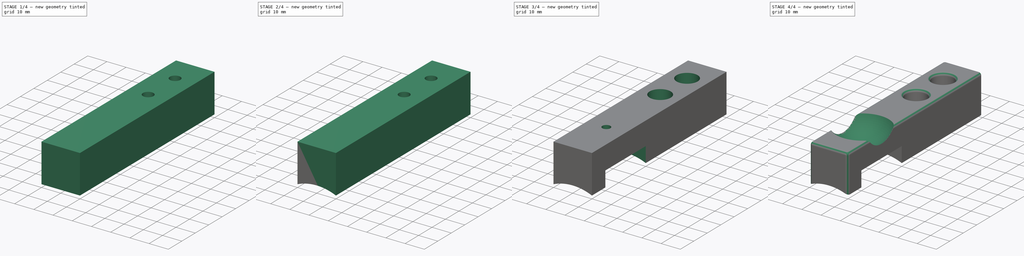
[diagram: build sequence overview — one tinted view per stage of 4, left to right]
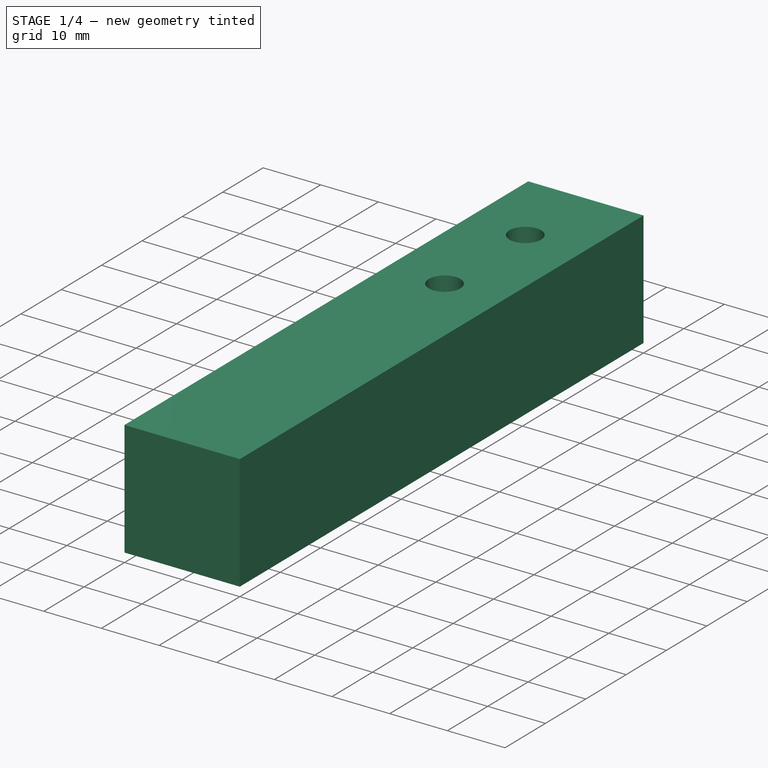
[diagram: stage 1 of 4 — iso view after this stage's code; geometry added in this stage tinted green]
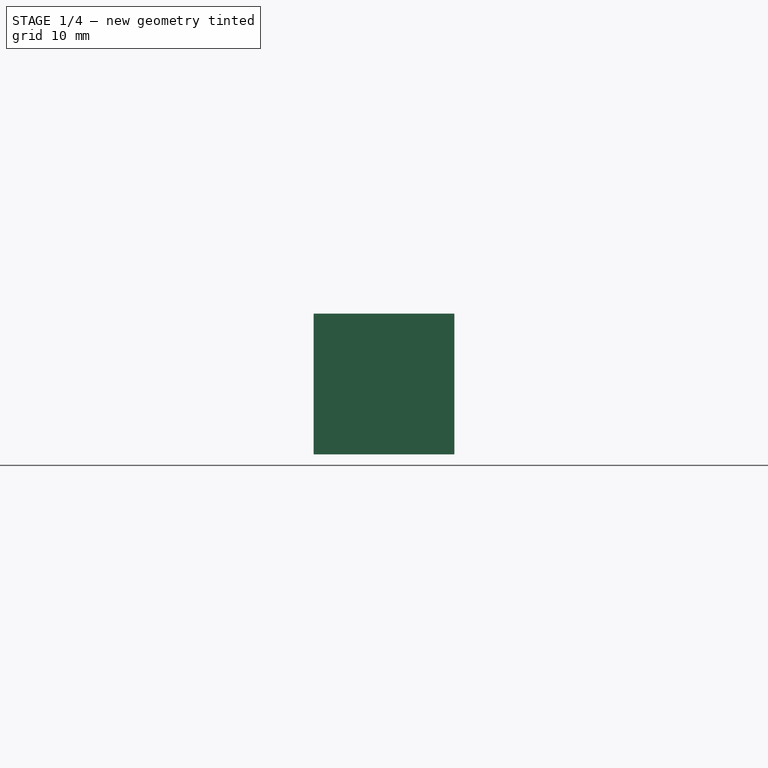
[diagram: stage 1 of 4 — front view after this stage's code; geometry added in this stage tinted green]
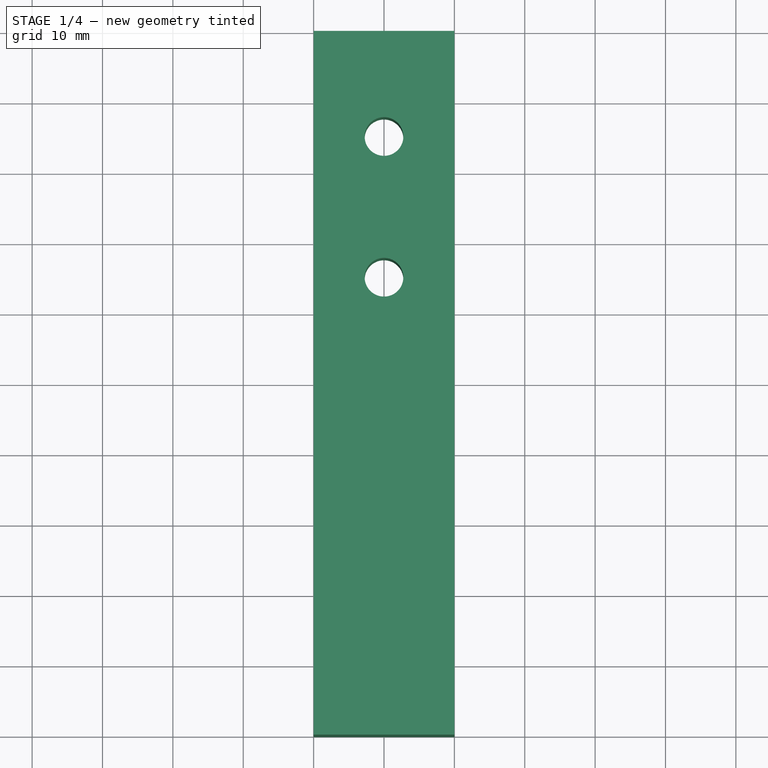
[diagram: stage 1 of 4 — top view after this stage's code; geometry added in this stage tinted green]
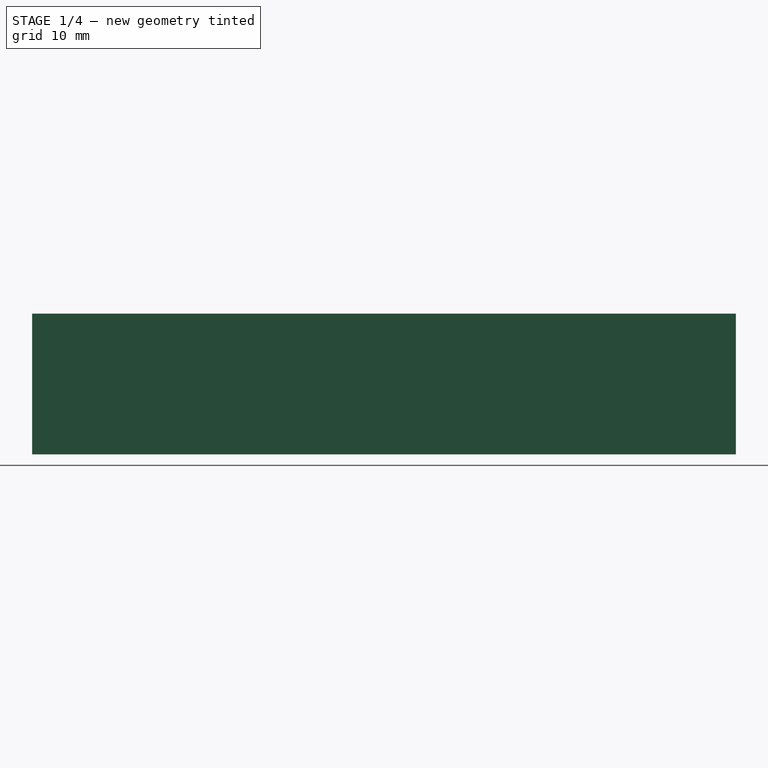
[diagram: stage 1 of 4 — right view after this stage's code; geometry added in this stage tinted green]
FCSTD DOCUMENT  (FreeCAD 0.17R13522 (Git))
Label: drawing
License: All rights reserved
LicenseURL: http://en.wikipedia.org/wiki/All_rights_reserved
objects: Sketcher::SketchObject×6, PartDesign::Pocket×6, Part::Box×1, App::DocumentObjectGroup×1, PartDesign::FeatureBase×1, PartDesign::SubtractiveSphere×1, PartDesign::Fillet×1, PartDesign::Body×1
note: 24 computed .brp shape members not serialized (recipe doc carries the construction recipe); baked Part::Feature solids carry a one-line shape summary decoded from their .brp

FEATURE [Part::Box] Box  label="Cube"
  AttacherType = Attacher::AttachEngine3D
  Height = 20
  Length = 20
  Placement = pos=(-10,0,-8) rot=(0,0,1;0rad)
  Width = 100
FEATURE [Sketcher::SketchObject] Sketch007
  ExternalGeometry = -> [Box]
  MapMode = 5
  Placement = pos=(-10,0,-8) rot=(1,0,0;3.14159rad)
  Support = -> [Box]
  expr: Constraints[7] = 5.5 / 2
  sketch-geometry (3):
    g0: Circle CenterX=10 CenterY=-65 CenterZ=0 NormalX=0 NormalY=0 NormalZ=1 AngleXU=0 Radius=2.75
    g1: Circle CenterX=10 CenterY=-85 CenterZ=0 NormalX=0 NormalY=0 NormalZ=1 AngleXU=0 Radius=2.75
    g2: LineSegment [constr] StartX=10 StartY=0 StartZ=0 EndX=10 EndY=-100 EndZ=0
  constraints (10):
    c: PointOnObject(g2,g-3)
    c: Vertical(g2)
    c: Symmetric(g-1,g-3,g2)
    c: Symmetric(g-4,g-4,g2)
    c: PointOnObject(g0,g2)
    c: PointOnObject(g1,g2)
    c: Equal(g1,g0)
    c: Radius(g0) = 2.75
    c: DistanceY(g1,g0) = 20
    c: DistanceY(g-4,g1) = 15
FEATURE [PartDesign::Pocket] Pocket003
  Length = 5
  Length2 = 100
  Placement = pos=(-10,0,-8) rot=(0,0,1;0rad)
  Profile = -> Sketch007
  Type = 2
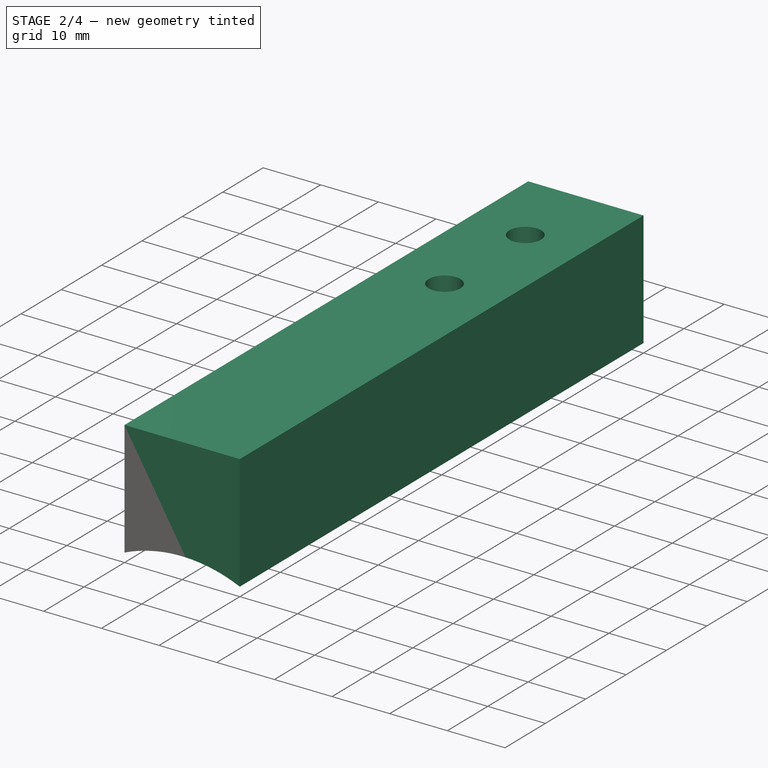
[diagram: stage 2 of 4 — iso view after this stage's code; geometry added in this stage tinted green]
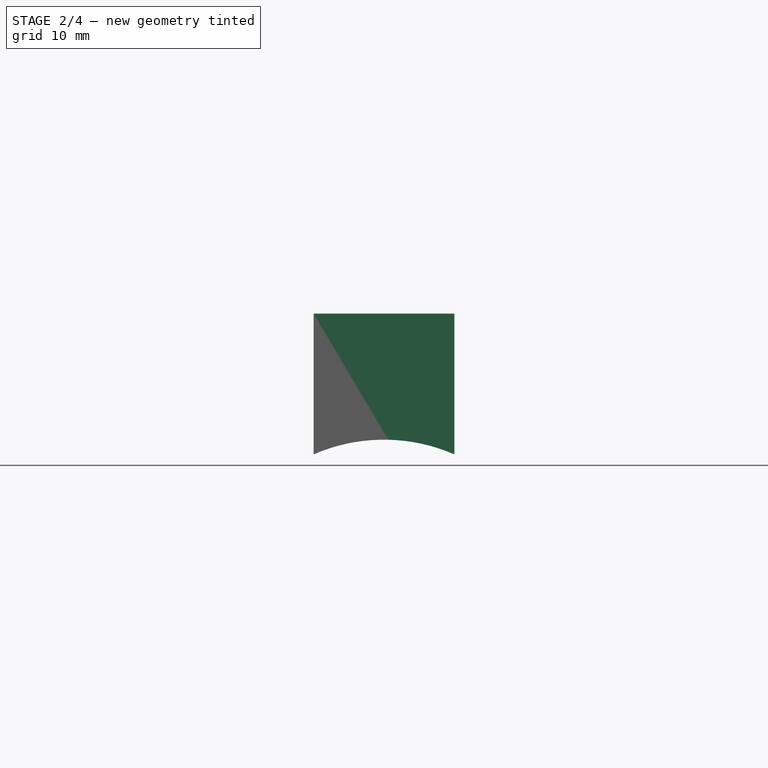
[diagram: stage 2 of 4 — front view after this stage's code; geometry added in this stage tinted green]
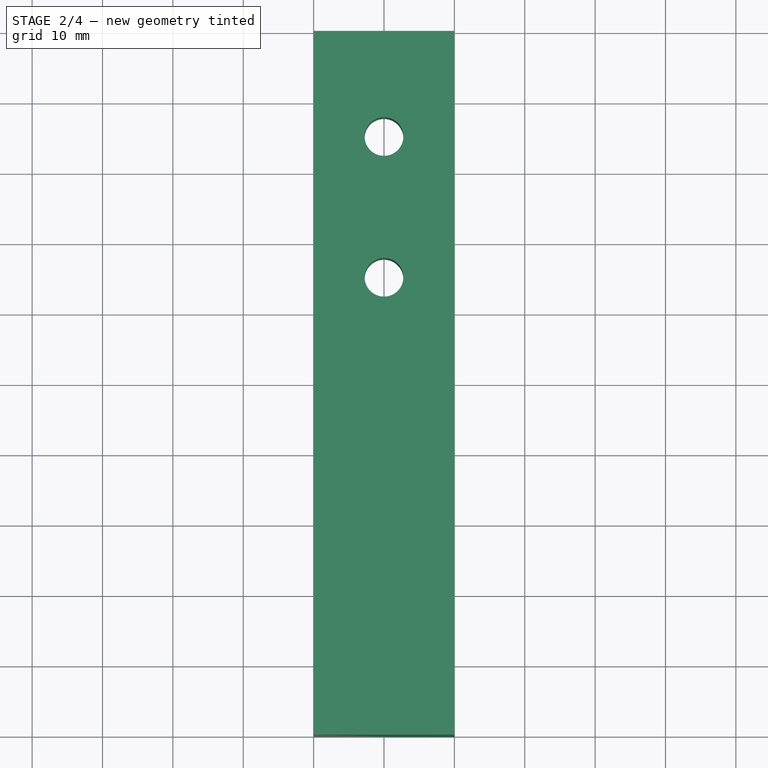
[diagram: stage 2 of 4 — top view after this stage's code; geometry added in this stage tinted green]
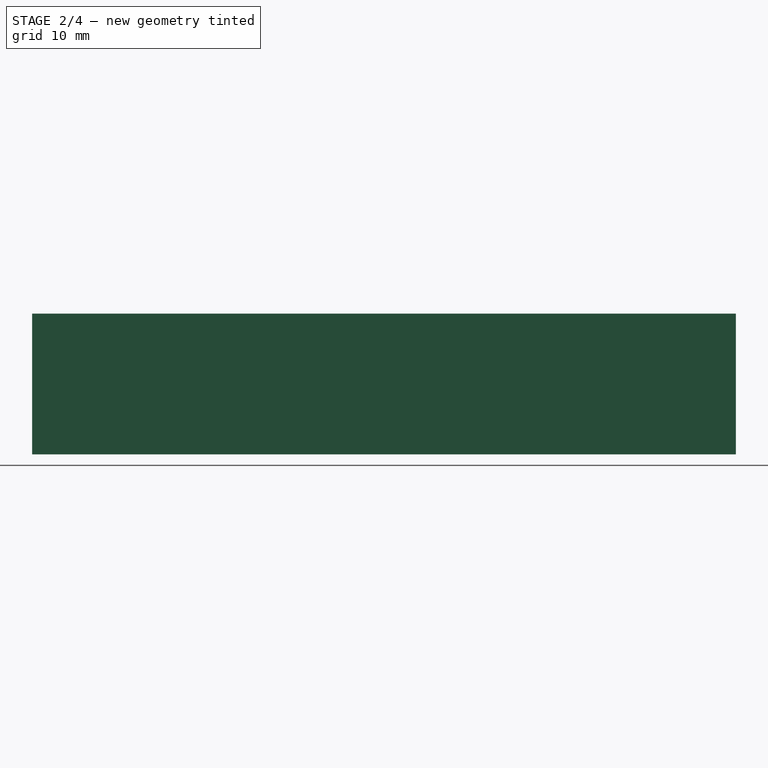
[diagram: stage 2 of 4 — right view after this stage's code; geometry added in this stage tinted green]
FEATURE [Sketcher::SketchObject] Sketch009
  ExternalGeometry = -> [Pocket003]
  MapMode = 5
  Placement = pos=(-10,0,-8) rot=(1,0,0;3.14159rad)
  Support = -> [Pocket003]
  sketch-geometry (2):
    g0: Circle CenterX=10 CenterY=-85 CenterZ=0 NormalX=0 NormalY=0 NormalZ=1 AngleXU=0 Radius=4.5
    g1: Circle CenterX=10 CenterY=-65 CenterZ=0 NormalX=0 NormalY=0 NormalZ=1 AngleXU=0 Radius=4.5
  constraints (4):
    c: Coincident(g0,g-3)
    c: Coincident(g1,g-4)
    c: Radius(g0) = 4.5
    c: Equal(g0,g1)
FEATURE [PartDesign::Pocket] Pocket004
  Length = 4.15
  Length2 = 100
  Placement = pos=(-10,0,-8) rot=(0,0,1;0rad)
  Profile = -> Sketch009
  Type = 0
  expr: Length = 6 - 1.8500000000000001
FEATURE [Sketcher::SketchObject] Sketch008
  ExternalGeometry = -> [Pocket003]
  MapMode = 5
  Placement = pos=(-10,100,-8) rot=(0,0.707107,0.707107;3.14159rad)
  Support = -> [Pocket004]
  sketch-geometry (1):
    g0: Circle CenterX=-10 CenterY=-22.9129 CenterZ=0 NormalX=0 NormalY=0 NormalZ=1 AngleXU=0 Radius=25
  constraints (3):
    c: PointOnObject(g-3,g0)
    c: PointOnObject(g-1,g0)
    c: Radius(g0) = 25
FEATURE [PartDesign::Pocket] Pocket005
  Length = 5
  Length2 = 100
  Placement = pos=(-10,0,-8) rot=(0,0,1;0rad)
  Profile = -> Sketch008
  Type = 1
FEATURE [App::DocumentObjectGroup] Group  label="Bottom"
  Group = -> [Box,Pocket003,Pocket004]
FEATURE [PartDesign::FeatureBase] BaseFeature
  BaseFeature = -> Pocket005
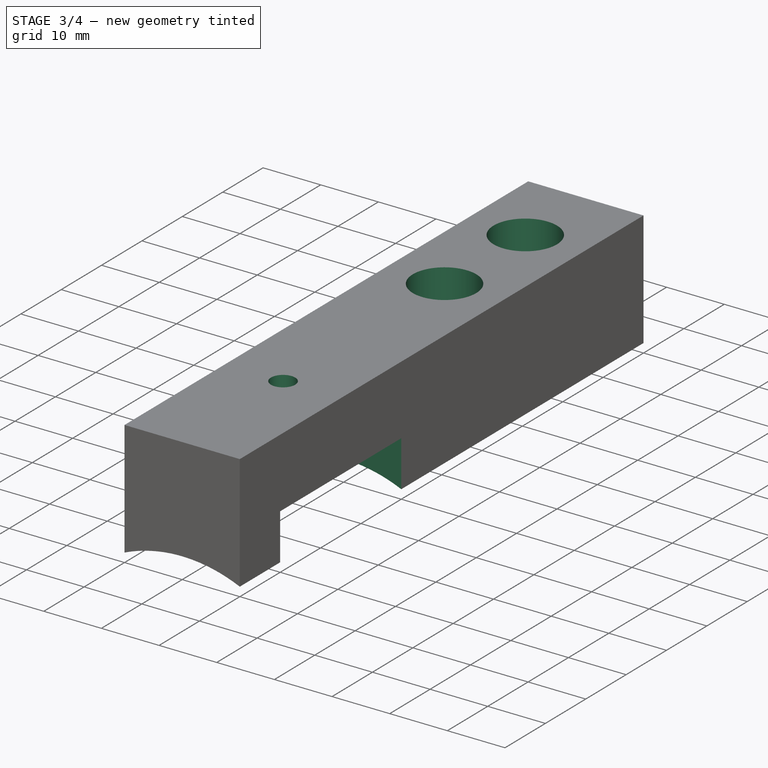
[diagram: stage 3 of 4 — iso view after this stage's code; geometry added in this stage tinted green]
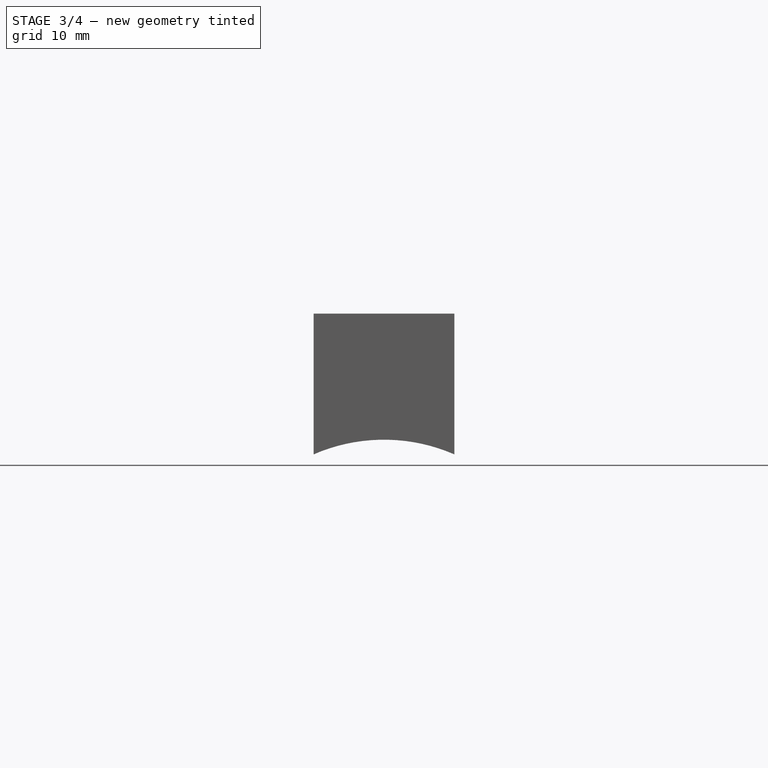
[diagram: stage 3 of 4 — front view after this stage's code; geometry added in this stage tinted green]
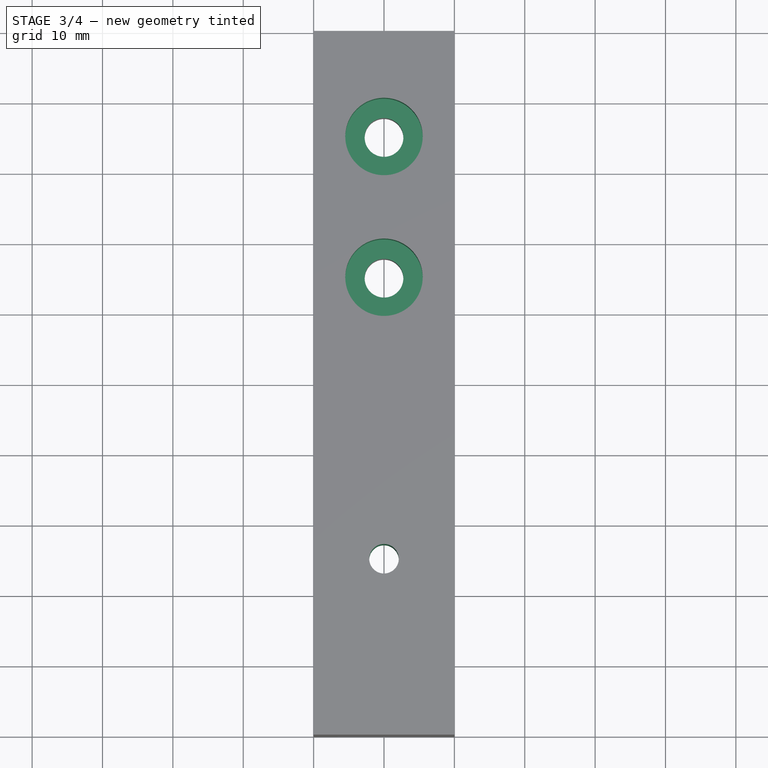
[diagram: stage 3 of 4 — top view after this stage's code; geometry added in this stage tinted green]
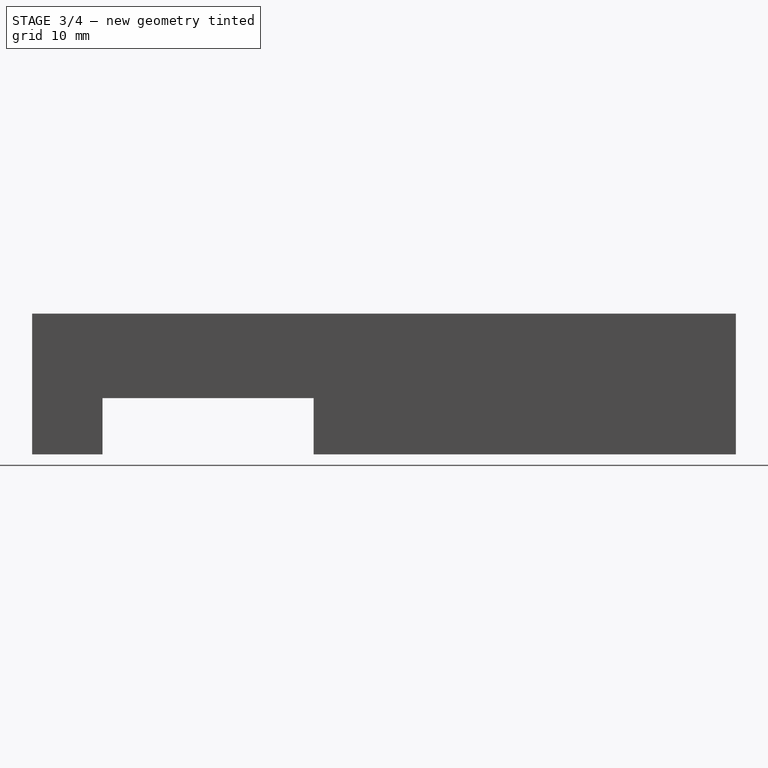
[diagram: stage 3 of 4 — right view after this stage's code; geometry added in this stage tinted green]
FEATURE [Sketcher::SketchObject] Sketch
  MapMode = 5
  Placement = pos=(0,0,0) rot=(0.57735,-0.57735,-0.57735;2.0944rad)
  Support = -> [BaseFeature]
  sketch-geometry (4):
    g0: LineSegment StartX=-40 StartY=8 StartZ=0 EndX=-10 EndY=8 EndZ=0
    g1: LineSegment StartX=-10 StartY=8 StartZ=0 EndX=-10 EndY=-12 EndZ=0
    g2: LineSegment StartX=-10 StartY=-12 StartZ=0 EndX=-40 EndY=-12 EndZ=0
    g3: LineSegment StartX=-40 StartY=-12 StartZ=0 EndX=-40 EndY=8 EndZ=0
  constraints (12):
    c: Coincident(g0,g1)
    c: Coincident(g1,g2)
    c: Coincident(g2,g3)
    c: Coincident(g3,g0)
    c: Horizontal(g0)
    c: Horizontal(g2)
    c: Vertical(g1)
    c: Vertical(g3)
    c: DistanceY(g1,g1) = 20
    c: Distance(g0) = 30
    c: DistanceX(g0,g-1) = 10
    c: DistanceY(g-1,g0) = 8
FEATURE [PartDesign::Pocket] Pocket
  BaseFeature = -> BaseFeature
  Length = 5
  Length2 = 100
  Profile = -> Sketch
  Type = 1
FEATURE [Sketcher::SketchObject] Sketch010
  MapMode = 5
  Placement = pos=(0,0,20) rot=(0,0,1;0rad)
  Support = -> [Pocket]
  sketch-geometry (1):
    g0: Circle CenterX=10 CenterY=25 CenterZ=0 NormalX=0 NormalY=0 NormalZ=1 AngleXU=0 Radius=2.1
  constraints (3):
    c: Radius(g0) = 2.1
    c: DistanceY(g-1,g0) = 25
    c: DistanceX(g-1,g0) = 10
FEATURE [PartDesign::Pocket] Pocket006
  BaseFeature = -> Pocket
  Length = 5
  Length2 = 100
  Profile = -> Sketch010
  Type = 1
FEATURE [Sketcher::SketchObject] Sketch011
  ExternalGeometry = -> [Pocket006]
  MapMode = 5
  Placement = pos=(0,0,20) rot=(0,0,1;0rad)
  Support = -> [Pocket006]
  sketch-geometry (2):
    g0: Circle CenterX=10 CenterY=85 CenterZ=0 NormalX=0 NormalY=0 NormalZ=1 AngleXU=0 Radius=5.5
    g1: Circle CenterX=10 CenterY=65 CenterZ=0 NormalX=0 NormalY=0 NormalZ=1 AngleXU=0 Radius=5.5
  constraints (4):
    c: Coincident(g0,g-3)
    c: Coincident(g1,g-4)
    c: Equal(g0,g1)
    c: Radius(g0) = 5.5
FEATURE [PartDesign::Pocket] Pocket007
  BaseFeature = -> Pocket006
  Length = 8
  Length2 = 100
  Profile = -> Sketch011
  Type = 0
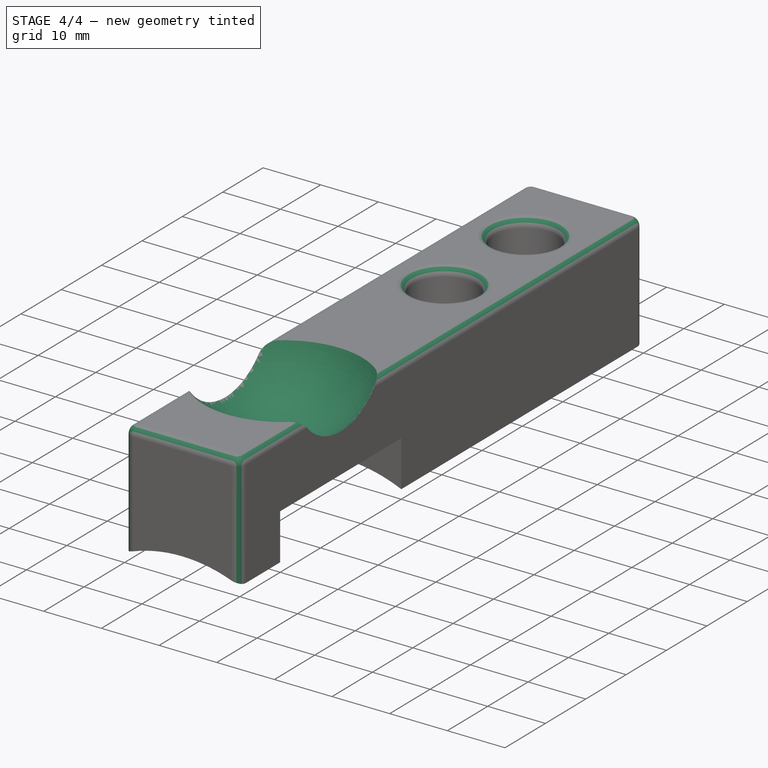
[diagram: stage 4 of 4 — iso view after this stage's code; geometry added in this stage tinted green]
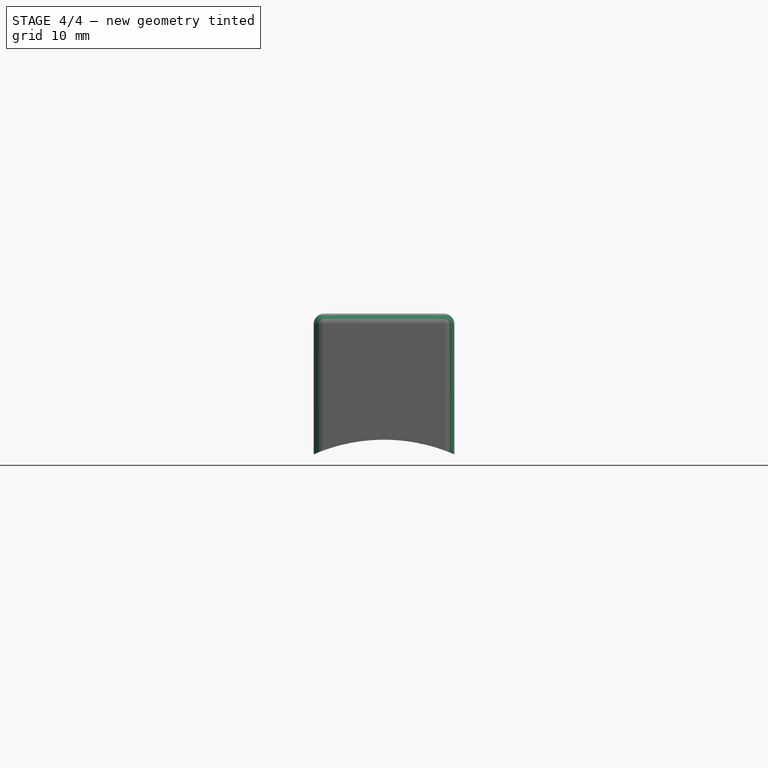
[diagram: stage 4 of 4 — front view after this stage's code; geometry added in this stage tinted green]
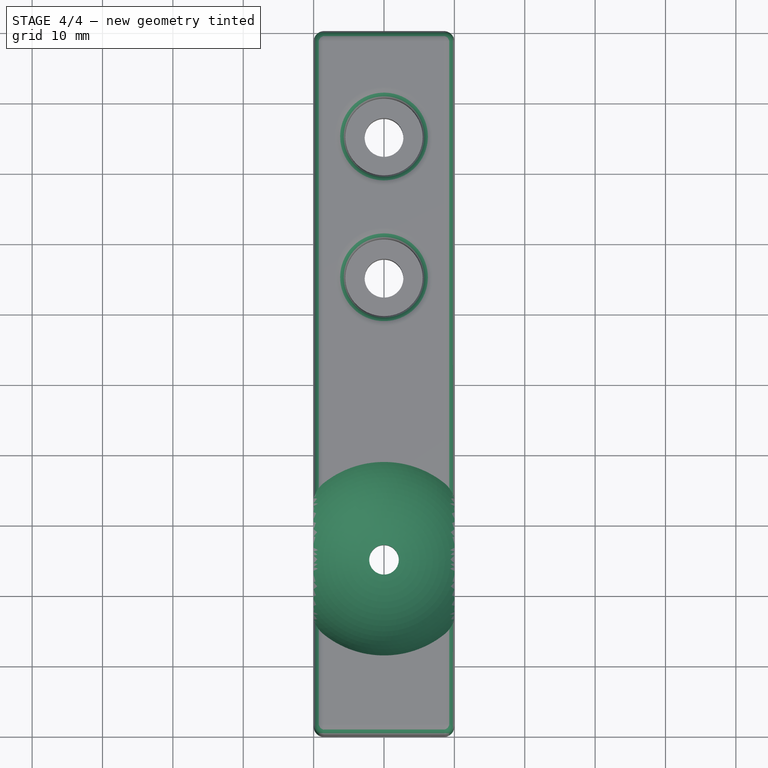
[diagram: stage 4 of 4 — top view after this stage's code; geometry added in this stage tinted green]
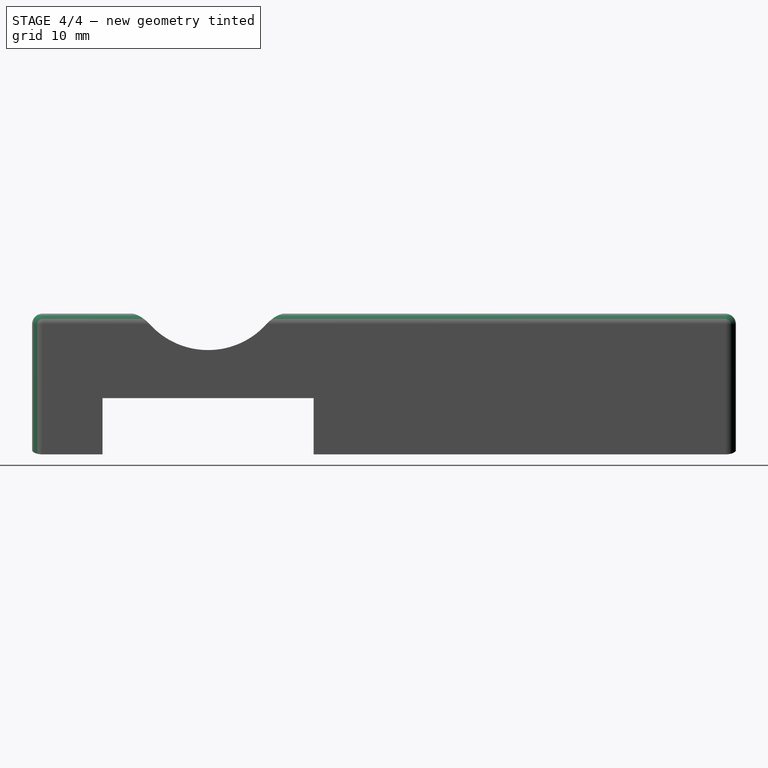
[diagram: stage 4 of 4 — right view after this stage's code; geometry added in this stage tinted green]
FEATURE [PartDesign::SubtractiveSphere] Sphere
  Angle1 = -90
  Angle2 = 90
  Angle3 = 360
  AttacherType = Attacher::AttachEngine3D
  AttachmentOffset = pos=(10,25,6) rot=(0,0,1;0rad)
  BaseFeature = -> Pocket007
  MapMode = 5
  Placement = pos=(10,25,26) rot=(0,0,1;0rad)
  Radius = 15
  Support = -> [Pocket007]
FEATURE [PartDesign::Fillet] Fillet
  Base = -> Sphere [Edge20,Edge3,Edge19,Edge1,Edge12,Edge13,Edge10,Edge4,Edge23,Edge38,Edge21,Edge22]
  BaseFeature = -> Sphere
  Placement = pos=(10,25,26) rot=(0,0,1;0rad)
  Radius = 1.5
FEATURE [PartDesign::Body] Body
  BaseFeature = -> Pocket005
  Group = -> [BaseFeature,Sketch,Pocket,Sketch010,Pocket006,Sketch011,Pocket007,Sphere,Fillet]
  Origin = -> Origin
  Tip = -> Fillet
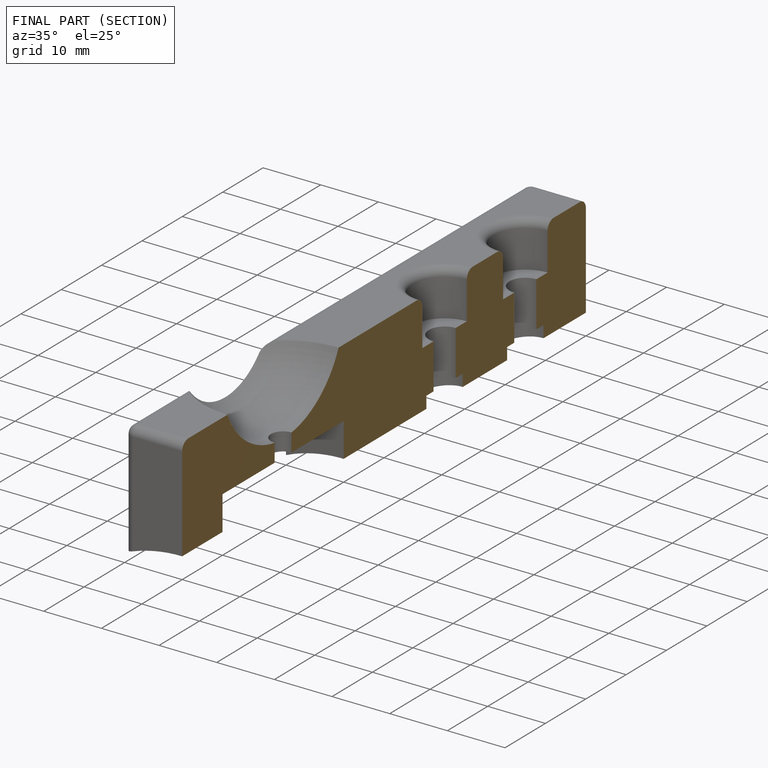
[diagram: finished part — half-section view (interior)]
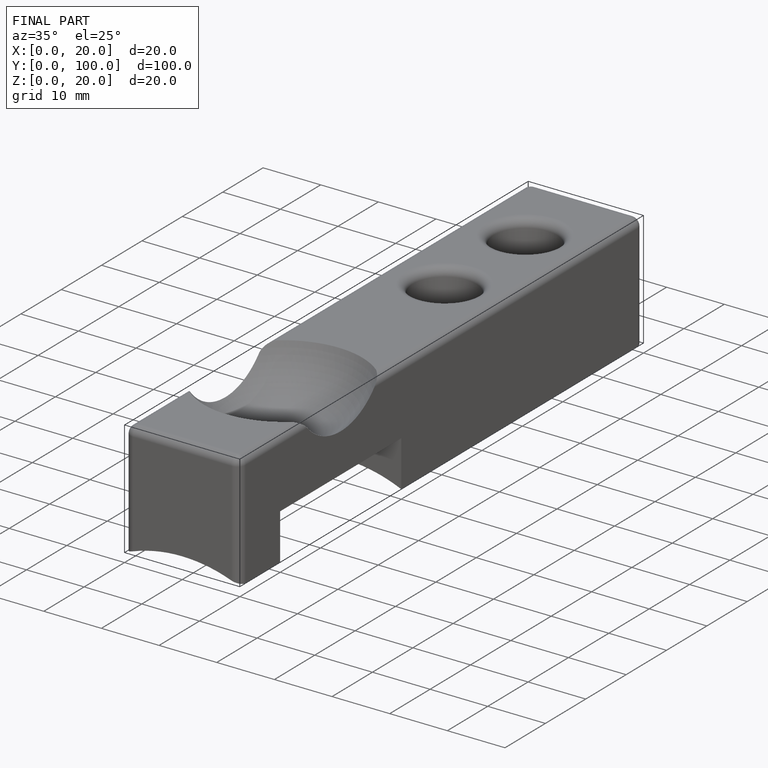
[diagram: finished part — iso view with bounding-box wireframe]
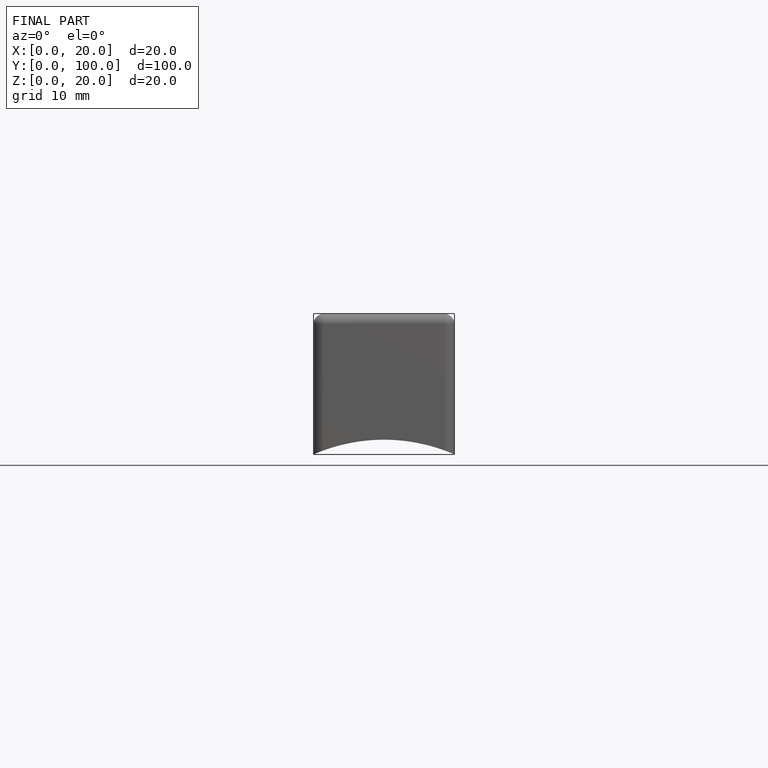
[diagram: finished part — front view with bounding-box wireframe]
